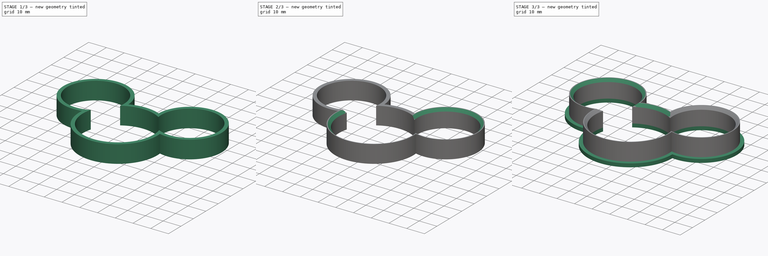
[diagram: build sequence overview — one tinted view per stage of 3, left to right]
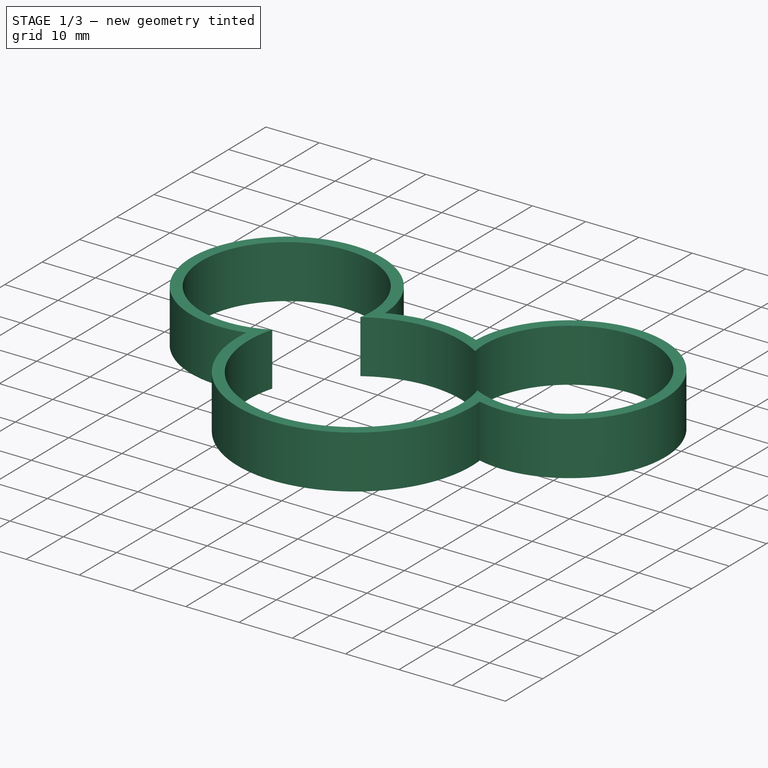
[diagram: stage 1 of 3 — iso view after this stage's code; geometry added in this stage tinted green]
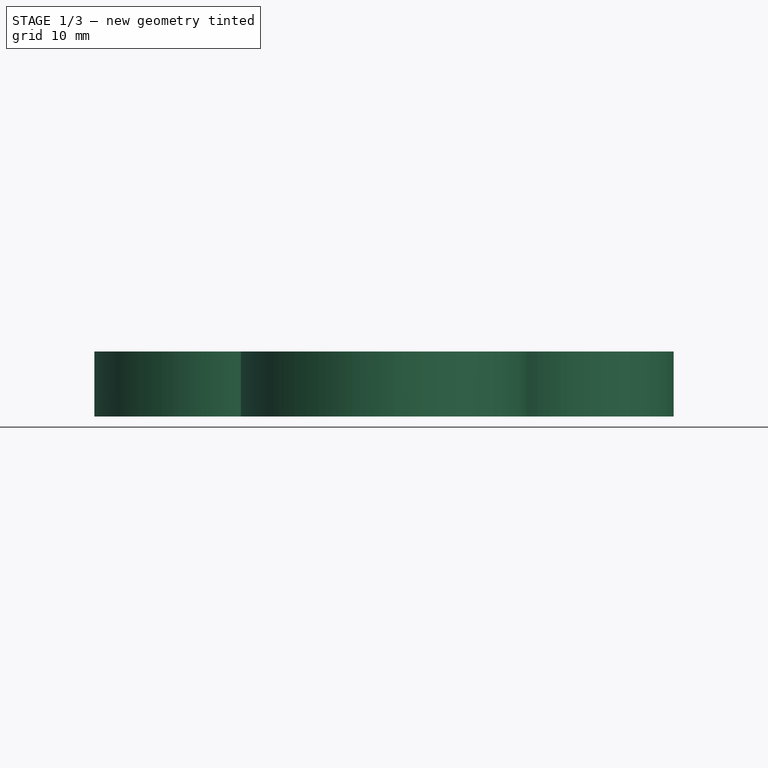
[diagram: stage 1 of 3 — front view after this stage's code; geometry added in this stage tinted green]
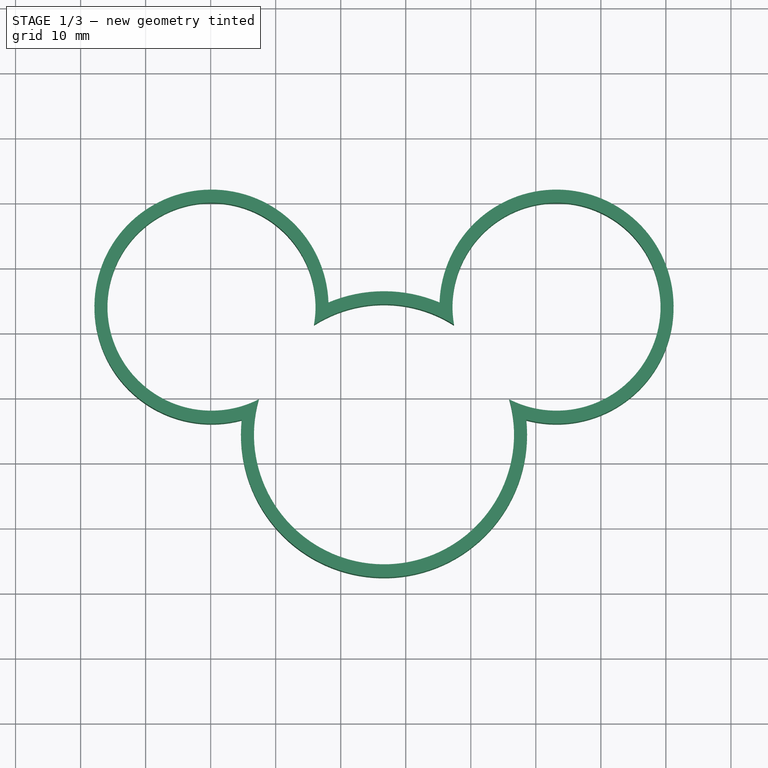
[diagram: stage 1 of 3 — top view after this stage's code; geometry added in this stage tinted green]
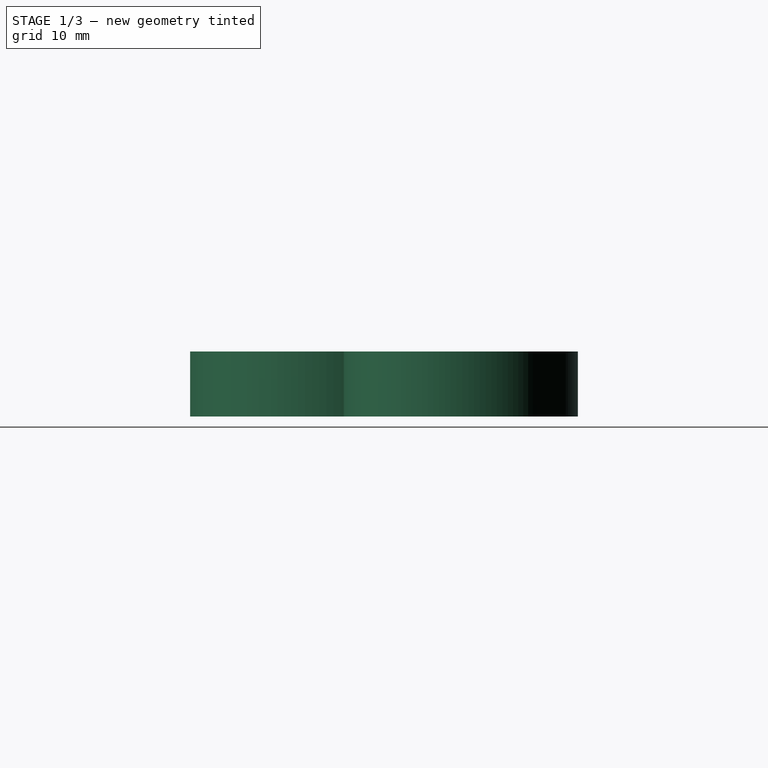
[diagram: stage 1 of 3 — right view after this stage's code; geometry added in this stage tinted green]
FCSTD DOCUMENT  (FreeCAD 0.18.1R)
Label: MickeyMouseCookieCutter
License: All rights reserved
LicenseURL: http://en.wikipedia.org/wiki/All_rights_reserved
objects: Sketcher::SketchObject×6, PartDesign::Chamfer×4, PartDesign::Pad×2, PartDesign::Pocket×2, PartDesign::Body×1
note: 19 computed .brp shape members not serialized (recipe doc carries the construction recipe); baked Part::Feature solids carry a one-line shape summary decoded from their .brp

FEATURE [Sketcher::SketchObject] Sketch
  MapMode = 5
  Support = -> [XY_Plane]
  sketch-geometry (8):
    g0: ArcOfCircle CenterX=43.18 CenterY=34.0057 CenterZ=0 NormalX=0 NormalY=0 NormalZ=1 AngleXU=0 Radius=18 StartAngle=4.45159 EndAngle=9.38887
    g1: ArcOfCircle CenterX=-9.87451 CenterY=34.0057 CenterZ=0 NormalX=0 NormalY=0 NormalZ=1 AngleXU=0 Radius=18 StartAngle=0.0359045 EndAngle=4.97319
    g2: ArcOfCircle CenterX=16.6528 CenterY=14.3766 CenterZ=0 NormalX=0 NormalY=0 NormalZ=1 AngleXU=0 Radius=22 StartAngle=1.17219 EndAngle=1.9694
    g3: ArcOfCircle CenterX=16.6528 CenterY=14.3766 CenterZ=0 NormalX=0 NormalY=0 NormalZ=1 AngleXU=0 Radius=22 StartAngle=3.0397 EndAngle=6.38508
    g4: LineSegment [constr] StartX=43.18 StartY=34.0057 StartZ=0 EndX=16.6528 EndY=14.3766 EndZ=0
    g5: LineSegment [constr] StartX=16.6528 StartY=14.3766 StartZ=0 EndX=-9.87451 EndY=34.0057 EndZ=0
    g6: LineSegment [constr] StartX=-9.87451 StartY=34.0057 StartZ=0 EndX=43.18 EndY=34.0057 EndZ=0
    g7: GeomPoint X=0 Y=0 Z=0
  constraints (21):
    c: Radius(g0) = 18
    c: Coincident(g1,g3)
    c: Coincident(g2,g0)
    c: Coincident(g2,g1)
    c: Coincident(g3,g2)
    c: Radius(g3) = 22
    c: Radius(g2) = 22
    c: Equal(g1,g0)
    c: Coincident(g3,g0)
    c: Distance(g0,g2) = 33
    c: Distance(g1,g2) = 33
    c: Coincident(g4,g5)
    c: Coincident(g1,g5)
    c: Coincident(g2,g4)
    c: Coincident(g4,g0)
    c: Angle(g4,g5) = 1.8675
    c: Coincident(g6,g1)
    c: Coincident(g6,g0)
    c: Horizontal(g6)
    c: PointOnObject(g7,g3)
    c: Coincident(g-1,g7)
FEATURE [PartDesign::Pad] Pad
  Length = 10
  Length2 = 100
  Profile = -> Sketch
  Type = 0
FEATURE [Sketcher::SketchObject] Sketch001
  ExternalGeometry = -> [Pad]
  MapMode = 5
  Placement = pos=(0,0,10) rot=(0,0,1;0rad)
  Support = -> [Pad]
  sketch-geometry (1):
    g0: Circle CenterX=16.6528 CenterY=14.3766 CenterZ=0 NormalX=0 NormalY=0 NormalZ=1 AngleXU=0 Radius=20
  constraints (2):
    c: Coincident(g0,g-3)
    c: Radius(g0) = 20
FEATURE [PartDesign::Pocket] Pocket
  BaseFeature = -> Pad
  Length = 10
  Length2 = 100
  Profile = -> Sketch001
  Type = 0
FEATURE [Sketcher::SketchObject] Sketch002
  ExternalGeometry = -> [Pocket]
  MapMode = 5
  Placement = pos=(0,0,10) rot=(0,0,1;0rad)
  Support = -> [Pocket]
  sketch-geometry (2):
    g0: Circle CenterX=-9.87451 CenterY=34.0057 CenterZ=0 NormalX=0 NormalY=0 NormalZ=1 AngleXU=0 Radius=16
    g1: Circle CenterX=43.18 CenterY=34.0057 CenterZ=0 NormalX=0 NormalY=0 NormalZ=1 AngleXU=0 Radius=16
  constraints (4):
    c: Coincident(g0,g-3)
    c: Coincident(g-4,g1)
    c: Radius(g0) = 16
    c: Equal(g1,g0)
FEATURE [PartDesign::Pocket] Pocket001
  BaseFeature = -> Pocket
  Length = 10
  Length2 = 100
  Profile = -> Sketch002
  Type = 0
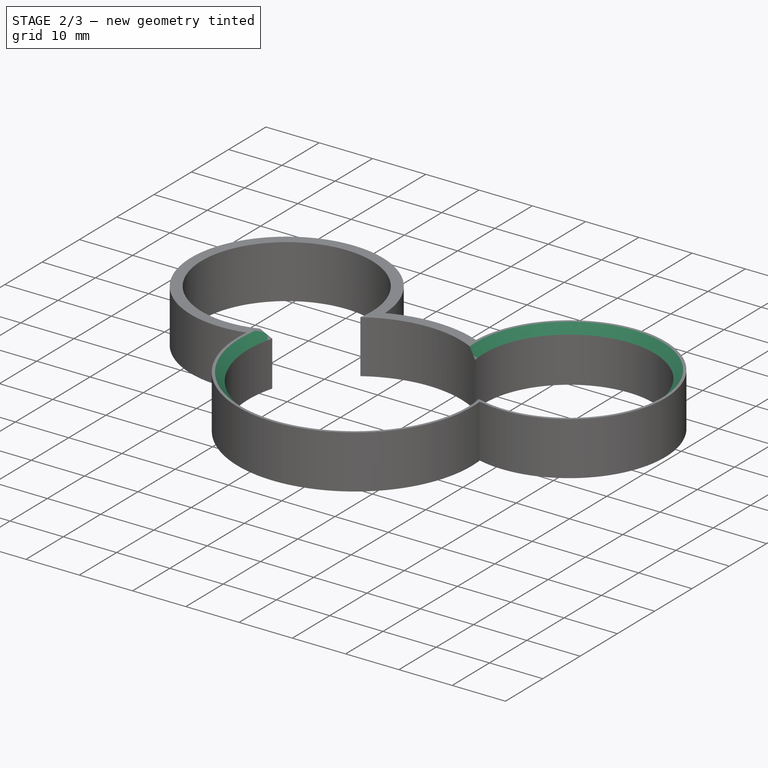
[diagram: stage 2 of 3 — iso view after this stage's code; geometry added in this stage tinted green]
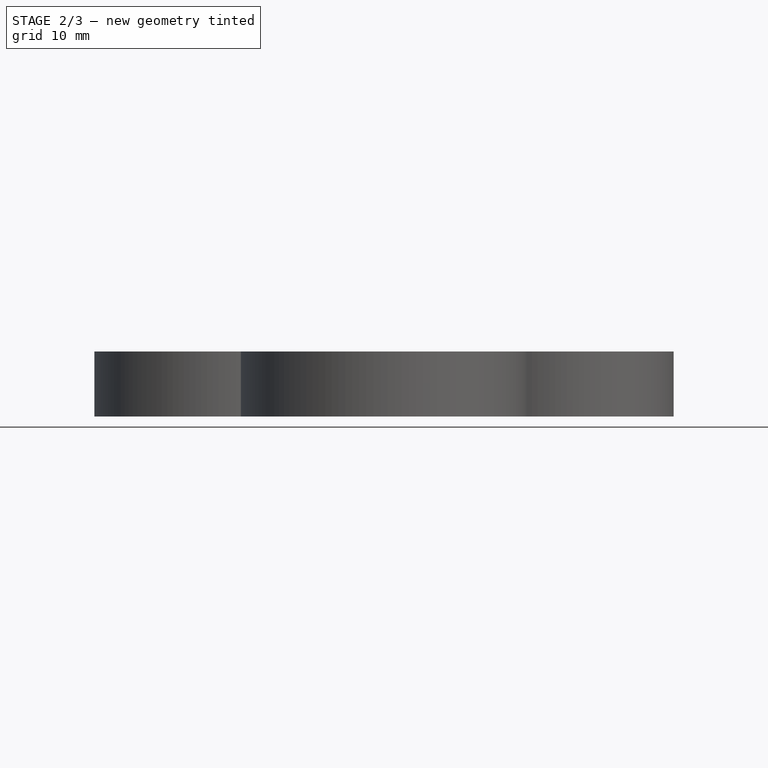
[diagram: stage 2 of 3 — front view after this stage's code; geometry added in this stage tinted green]
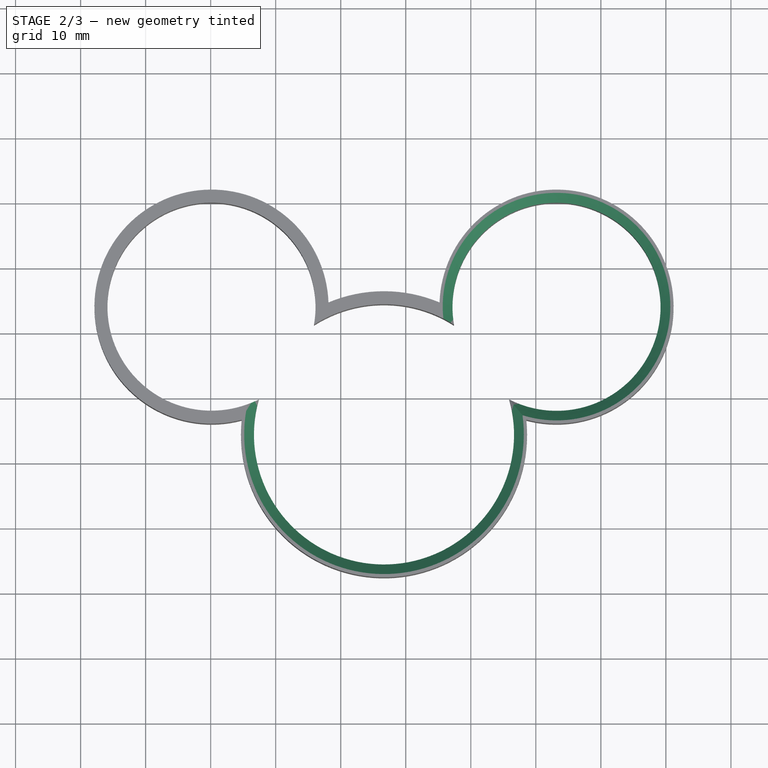
[diagram: stage 2 of 3 — top view after this stage's code; geometry added in this stage tinted green]
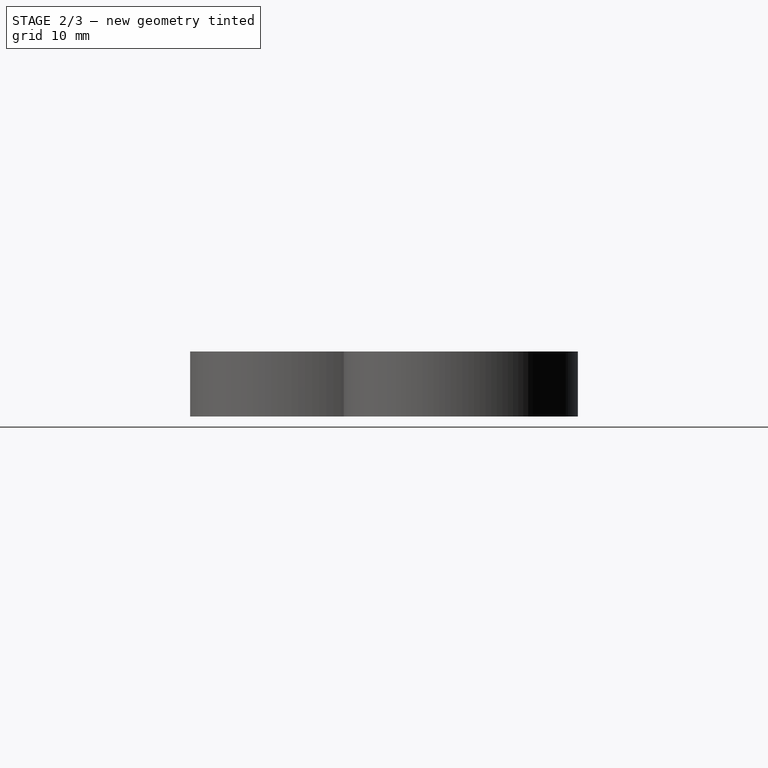
[diagram: stage 2 of 3 — right view after this stage's code; geometry added in this stage tinted green]
FEATURE [PartDesign::Chamfer] Chamfer
  Base = -> Pocket001 [Edge22]
  BaseFeature = -> Pocket001
  Size = 1.5
FEATURE [PartDesign::Chamfer] Chamfer001
  Base = -> Chamfer [Edge1]
  BaseFeature = -> Chamfer
  Size = 1.5
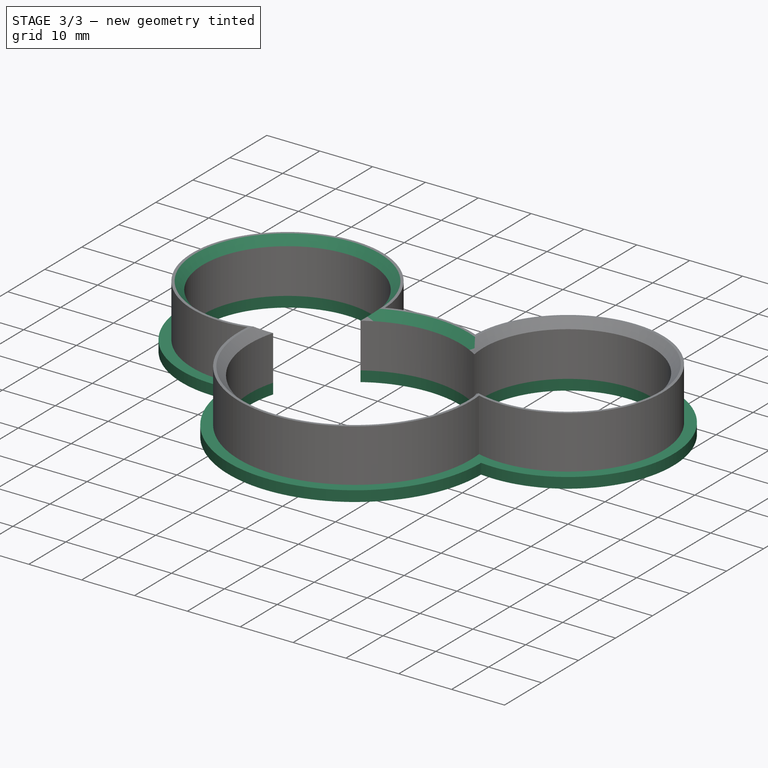
[diagram: stage 3 of 3 — iso view after this stage's code; geometry added in this stage tinted green]
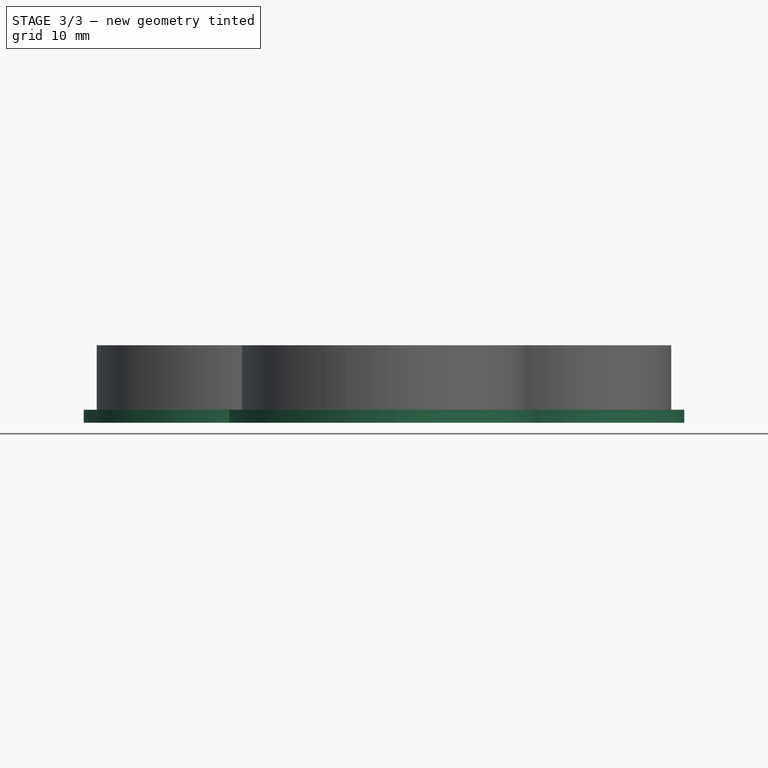
[diagram: stage 3 of 3 — front view after this stage's code; geometry added in this stage tinted green]
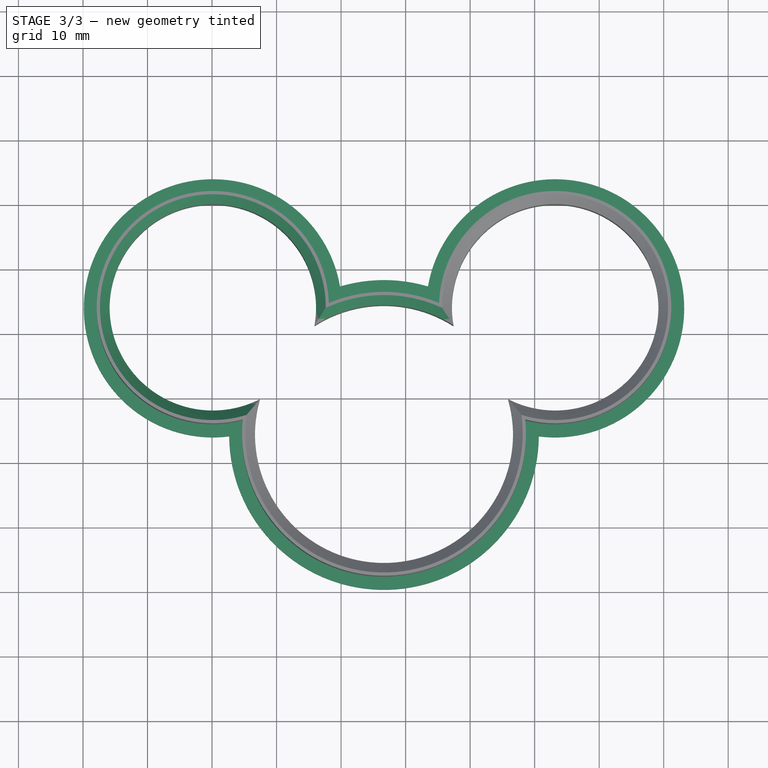
[diagram: stage 3 of 3 — top view after this stage's code; geometry added in this stage tinted green]
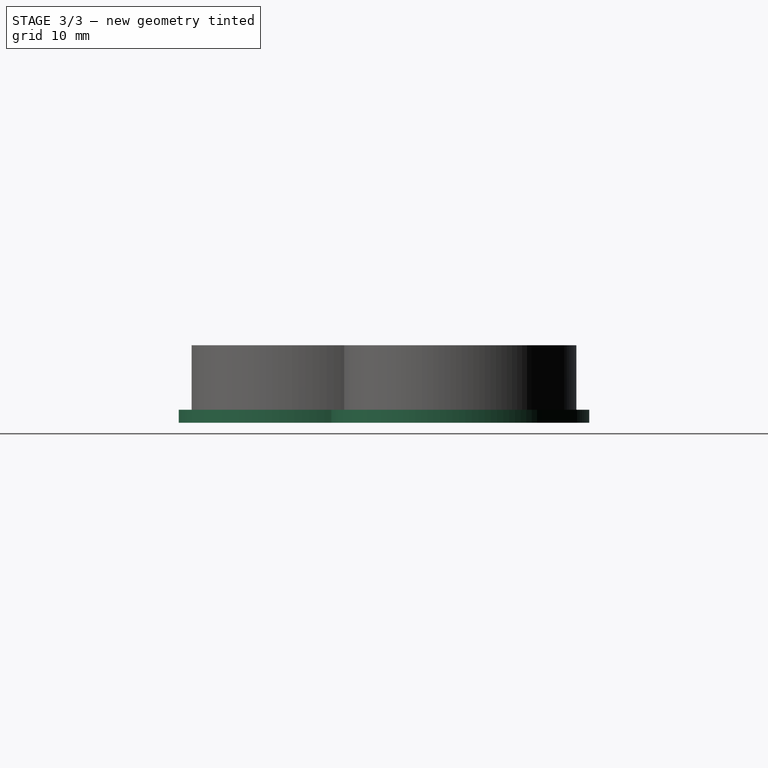
[diagram: stage 3 of 3 — right view after this stage's code; geometry added in this stage tinted green]
FEATURE [PartDesign::Chamfer] Chamfer002
  Base = -> Chamfer001 [Edge5]
  BaseFeature = -> Chamfer001
  Size = 1.5
FEATURE [PartDesign::Chamfer] Chamfer003
  Base = -> Chamfer002 [Edge6]
  BaseFeature = -> Chamfer002
  Size = 1.5
FEATURE [Sketcher::SketchObject] Sketch003
  ExternalGeometry = -> [Chamfer003]
  MapMode = 5
  Placement = pos=(0,0,0) rot=(1,0,0;3.14159rad)
  Support = -> [Chamfer003]
  constraints (4):
    c: Radius(g-6) = 16
    c: Radius(g-6) = 16
    c: Radius(g-7) = 16
    c: Radius(g-7) = 16
FEATURE [Sketcher::SketchObject] Sketch004
  ExternalGeometry = -> [Chamfer003]
  MapMode = 5
  Placement = pos=(0,0,0) rot=(1,0,0;3.14159rad)
  Support = -> [Chamfer003]
  sketch-geometry (8):
    g0: ArcOfCircle CenterX=16.6528 CenterY=-14.3766 CenterZ=0 NormalX=0 NormalY=0 NormalZ=1 AngleXU=0 Radius=20 StartAngle=6.01123 EndAngle=9.69673
    g1: ArcOfCircle CenterX=-9.87451 CenterY=-34.0057 CenterZ=0 NormalX=0 NormalY=0 NormalZ=1 AngleXU=0 Radius=16 StartAngle=1.09966 EndAngle=6.45761
    g2: ArcOfCircle CenterX=16.6528 CenterY=-14.3766 CenterZ=0 NormalX=0 NormalY=0 NormalZ=1 AngleXU=0 Radius=20 StartAngle=4.14373 EndAngle=5.28105
    g3: ArcOfCircle CenterX=43.18 CenterY=-34.0057 CenterZ=0 NormalX=0 NormalY=0 NormalZ=1 AngleXU=0 Radius=16 StartAngle=2.96717 EndAngle=8.32511
    g4: ArcOfCircle CenterX=16.6528 CenterY=-14.3766 CenterZ=0 NormalX=0 NormalY=0 NormalZ=1 AngleXU=0 Radius=24 StartAngle=0.00876719 EndAngle=3.13283
    g5: ArcOfCircle CenterX=-9.87451 CenterY=-34.0057 CenterZ=0 NormalX=0 NormalY=0 NormalZ=1 AngleXU=0 Radius=20 StartAngle=1.44405 EndAngle=6.11323
    g6: ArcOfCircle CenterX=16.6528 CenterY=-14.3766 CenterZ=0 NormalX=0 NormalY=0 NormalZ=1 AngleXU=0 Radius=24 StartAngle=4.42445 EndAngle=5.00033
    g7: ArcOfCircle CenterX=43.18 CenterY=-34.0057 CenterZ=0 NormalX=0 NormalY=0 NormalZ=1 AngleXU=0 Radius=20 StartAngle=3.31155 EndAngle=7.98073
  constraints (24):
    c: Coincident(g-9,g0)
    c: Coincident(g0,g-9)
    c: Coincident(g0,g-4)
    c: Coincident(g1,g-6)
    c: Coincident(g1,g0)
    c: Coincident(g-6,g1)
    c: Coincident(g2,g1)
    c: Coincident(g2,g-7)
    c: Coincident(g2,g0)
    c: Coincident(g3,g0)
    c: Coincident(g3,g-8)
    c: Coincident(g3,g2)
    c: Coincident(g6,g0)
    c: Coincident(g6,g4)
    c: Coincident(g1,g5)
    c: Coincident(g7,g3)
    c: Coincident(g4,g7)
    c: Coincident(g4,g5)
    c: Coincident(g6,g5)
    c: Coincident(g6,g7)
    c: Radius(g4) = 24
    c: Radius(g5) = 20
    c: Radius(g6) = 24
    c: Radius(g7) = 20
FEATURE [PartDesign::Pad] Pad001
  BaseFeature = -> Chamfer003
  Length = 2
  Length2 = 100
  Profile = -> Sketch004
  Type = 0
FEATURE [Sketcher::SketchObject] Sketch005
  ExternalGeometry = -> [Pad001]
  MapMode = 5
  Support = -> [Pad001]
  constraints (1):
    c: Distance(g-3,g-4) = 63.4156
FEATURE [PartDesign::Body] Body
  Group = -> [Sketch,Pad,Sketch001,Pocket,Sketch002,Pocket001,Chamfer,Chamfer001,Chamfer002,Chamfer003,Sketch003,Sketch004,Pad001,Sketch005]
  Origin = -> Origin
  Tip = -> Pad001
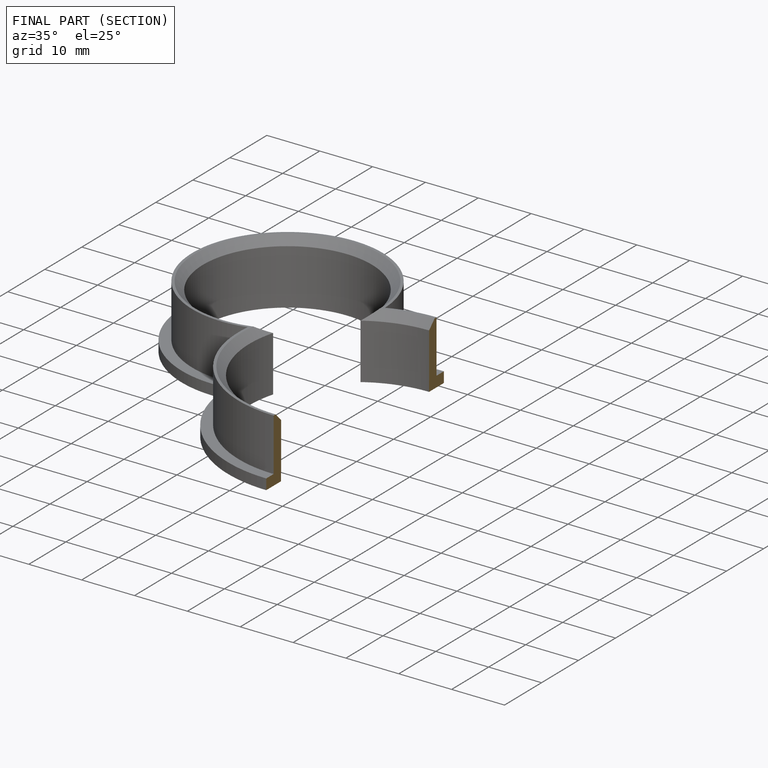
[diagram: finished part — half-section view (interior)]
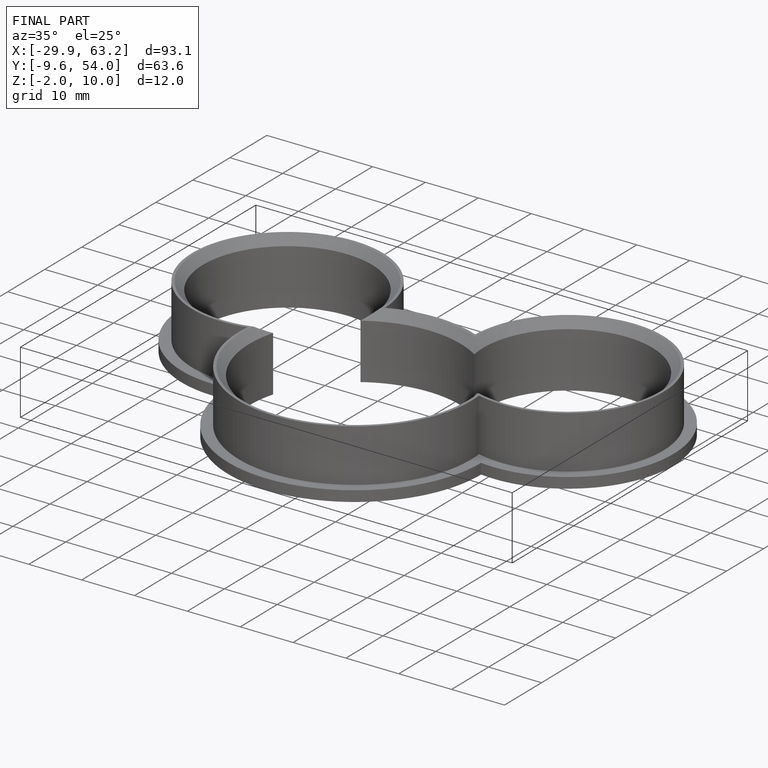
[diagram: finished part — iso view with bounding-box wireframe]
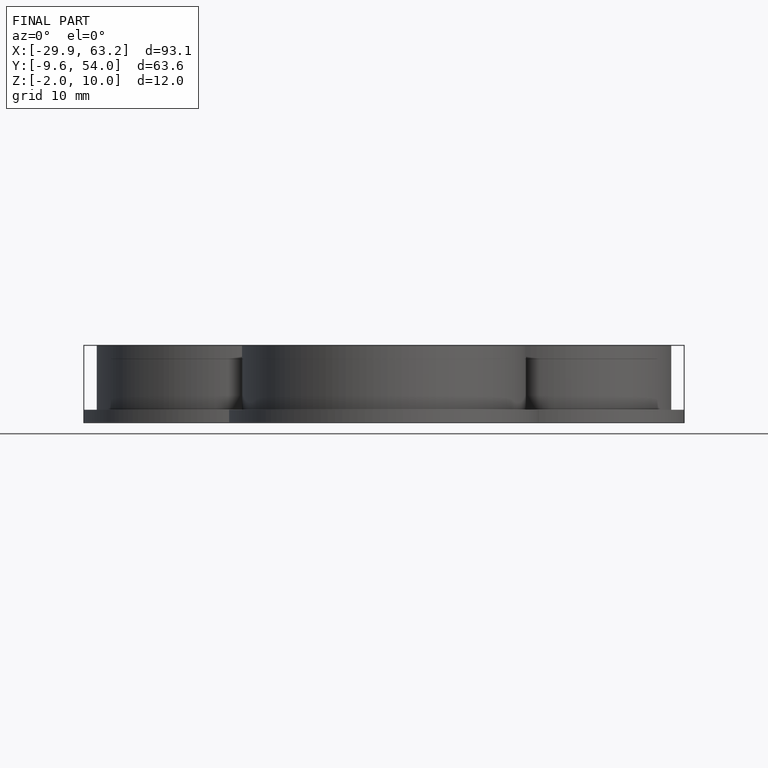
[diagram: finished part — front view with bounding-box wireframe]
